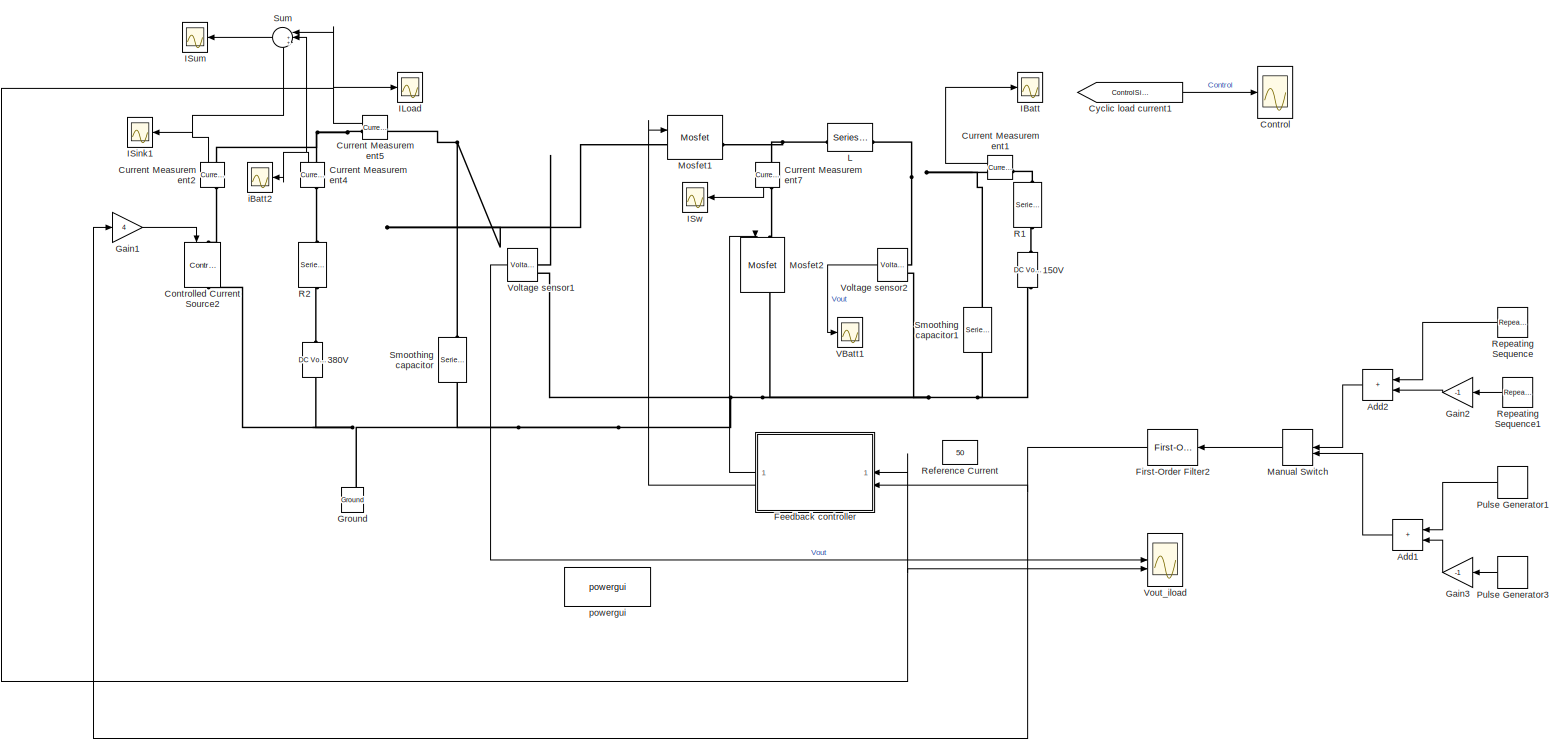
[diagram: root canvas - part 1/2, most of the canvas]
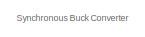
[diagram: root canvas - part 2/2, top right region]
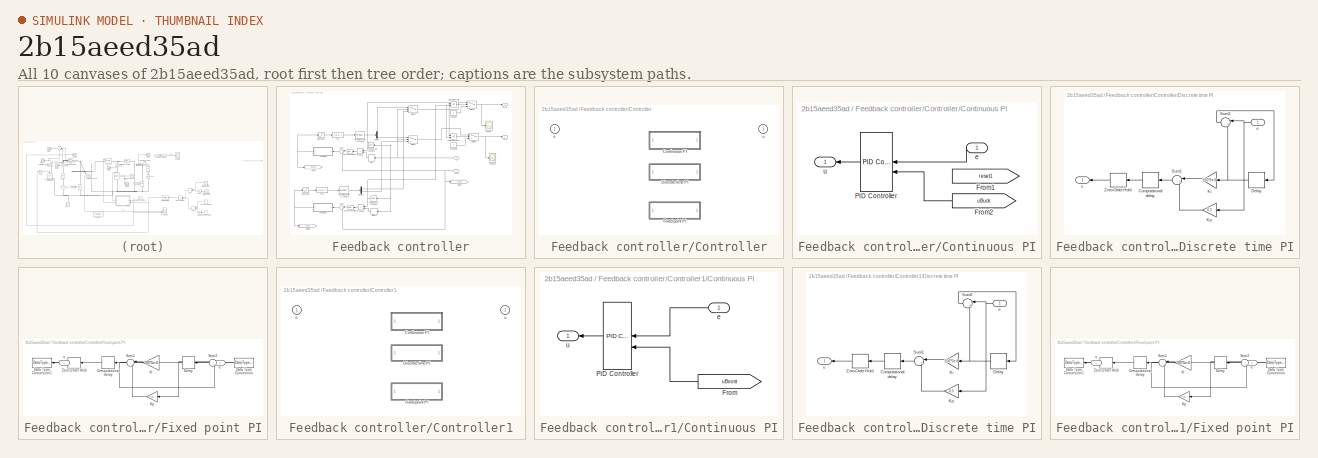
[diagram: thumbnail index - all 10 canvases of the model, root first then tree order]
MODEL slx_2b15aeed35ad
KIND model
CONFIG AbsTol = auto
CONFIG EnableMultiTasking = on
CONFIG FixedStep = auto
CONFIG MaxStep = 1e-4
CONFIG MinStep = auto
CONFIG RelTol = 1e-4
CONFIG SampleTimeConstraint = Unconstrained
CONFIG SolverName = ode15s
CONFIG StartTime = 0.0
CONFIG StopTime = 10
BLOCK [Reference] 150V  REF=spsDCVoltageSourceLib/DC Voltage Source
  NameLocation = right
  SourceBlock = spsDCVoltageSourceLib/DC Voltage Source
  SourceType = DC Voltage Source
BLOCK [Reference] 380V  REF=spsDCVoltageSourceLib/DC Voltage Source
  NameLocation = right
  SourceBlock = spsDCVoltageSourceLib/DC Voltage Source
  SourceType = DC Voltage Source
BLOCK [Sum] Add1
  IconShape = rectangular
BLOCK [Sum] Add2
  IconShape = rectangular
BLOCK [Scope] Control
  ActiveDisplayYMaximum = 0.023182348178801094
  ActiveDisplayYMinimum = -0.0024647053532001208
  DataLoggingDecimateData = on
  DataLoggingDecimation = 1
  DataLoggingSaveFormat = Array
  DataLoggingVariableName = Control
  Floating = off
  GraphicalSettings = {"Style":{"BackgroundColor":[0.12941176470588237,0.12941176470588237,0.12941176470588237],"AxesColor":[0.07058823529411765,0.07058823529411765,0.07058823529411765],"LabelsColor":[0.8509803921568627,0.8509803921568627,0.8509803921568627],"PreserveColors":false,"Visible":[true],"LineStyle":["-"],"LineWidth":[1.5],"BarWidth":[0.9],"LineColor":["auto"],"LineFaceAlpha":[1],"LineEdgeAlpha":[1],"Marker":...<+2013ch>  <repeated x3 — deduplicated; at blocks: Control, Control1>
  MultipleDisplayCache = [{"MaxYLimMag":0.023182348178801094,"MaxYLimReal":0.023182348178801094,"MinYLimMag":0,"MinYLimReal":-0.0024647053532001208,"PlotAsMagnitudePhase":false,"ShowGrid":true,"ShowLegend":false,"Title":"%<SignalLabel>","YLabel":""}]
  NumInputPorts = 1
  ScopeFrameLocation = window
  TimeSpan = 0.01
  WasSavedAsWebScope = on
  WindowPosition = [690.000000,269.000000,489.000000,261.000000,]
BLOCK [Reference] Controlled Current Source2  REF=spsControlledCurrentSourceLib/Controlled Current Source
  LibrarySourceBlock = sps_lib/Sources/Controlled Current Source
  NameLocation = top
  SourceBlock = spsControlledCurrentSourceLib/Controlled Current Source
  SourceType = Controlled Current Source
BLOCK [Reference] Current Measurement1  REF=spsCurrentMeasurementLib/Current Measurement
  SourceBlock = spsCurrentMeasurementLib/Current Measurement
  SourceType = Current Measurement
BLOCK [Reference] Current Measurement2  REF=spsCurrentMeasurementLib/Current Measurement
  NameLocation = left
  SourceBlock = spsCurrentMeasurementLib/Current Measurement
  SourceType = Current Measurement
BLOCK [Reference] Current Measurement4  REF=spsCurrentMeasurementLib/Current Measurement
  NameLocation = left
  SourceBlock = spsCurrentMeasurementLib/Current Measurement
  SourceType = Current Measurement
BLOCK [Reference] Current Measurement5  REF=spsCurrentMeasurementLib/Current Measurement
  SourceBlock = spsCurrentMeasurementLib/Current Measurement
  SourceType = Current Measurement
BLOCK [Reference] Current Measurement7  REF=spsCurrentMeasurementLib/Current Measurement
  NameLocation = right
  SourceBlock = spsCurrentMeasurementLib/Current Measurement
  SourceType = Current Measurement
BLOCK [From] Cyclic load current1
  GotoTag = ControlSignal
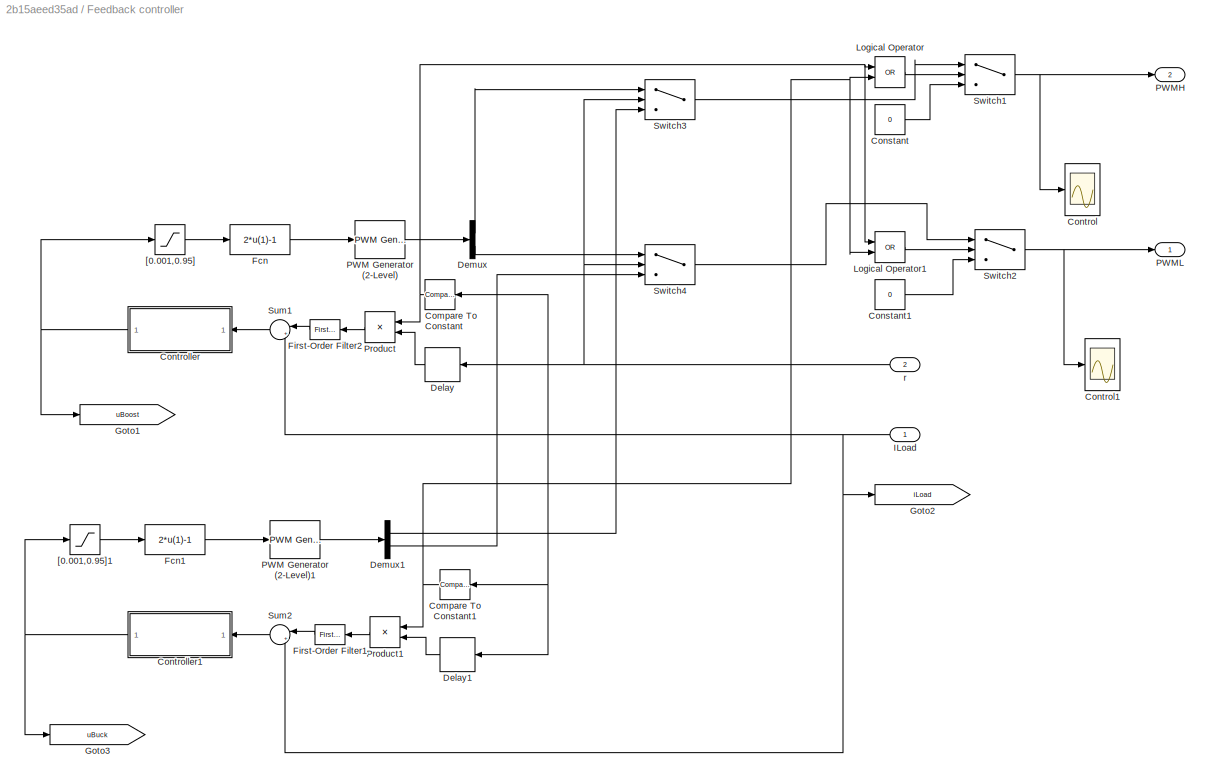
BLOCK [SubSystem] Feedback controller
BLOCK [Reference] Feedback controller/Compare To Constant  REF=simulink/Logic and Bit
Operations/Compare
To Constant
  SourceBlock = simulink/Logic and Bit\nOperations/Compare\nTo Constant
  SourceType = Compare To Constant
BLOCK [Reference] Feedback controller/Compare To Constant1  REF=simulink/Logic and Bit
Operations/Compare
To Constant
  SourceBlock = simulink/Logic and Bit\nOperations/Compare\nTo Constant
  SourceType = Compare To Constant
BLOCK [Constant] Feedback controller/Constant
  Value = 0
BLOCK [Constant] Feedback controller/Constant1
  Value = 0
BLOCK [Scope] Feedback controller/Control
  ActiveDisplayYMaximum = 1.125
  ActiveDisplayYMinimum = -0.12499999999999997
  DataLoggingDecimateData = on
  DataLoggingDecimation = 1
  DataLoggingSaveFormat = Array
  DataLoggingVariableName = Control1
  Floating = off
  MultipleDisplayCache = [{"MaxYLimMag":1.125,"MaxYLimReal":1.125,"MinYLimMag":0,"MinYLimReal":-0.12499999999999997,"PlotAsMagnitudePhase":false,"ShowGrid":true,"ShowLegend":false,"Title":"%<SignalLabel>","YLabel":""}]
  NumInputPorts = 1
  ScopeFrameLocation = window
  TimeSpan = 0.01
  WasSavedAsWebScope = on
  WindowPosition = [690.000000,269.000000,489.000000,261.000000,]
BLOCK [Scope] Feedback controller/Control1
  ActiveDisplayYMaximum = 0.023182348178801094
  ActiveDisplayYMinimum = -0.0024647053532001208
  DataLoggingDecimateData = on
  DataLoggingDecimation = 1
  DataLoggingSaveFormat = Array
  DataLoggingVariableName = Control2
  Floating = off
  MultipleDisplayCache = [{"MaxYLimMag":0.023182348178801094,"MaxYLimReal":0.023182348178801094,"MinYLimMag":0,"MinYLimReal":-0.0024647053532001208,"PlotAsMagnitudePhase":false,"ShowGrid":true,"ShowLegend":false,"Title":"%<SignalLabel>","YLabel":""}]
  NumInputPorts = 1
  ScopeFrameLocation = window
  TimeSpan = 0.01
  WasSavedAsWebScope = on
  WindowPosition = [690.000000,269.000000,489.000000,261.000000,]
BLOCK [SubSystem] Feedback controller/Controller
  AttributesFormatString = %<BlockChoice>
  LabelModeActiveChoice = Variant1
  Variant = on
  VariantControlMode = label
BLOCK [SubSystem] Feedback controller/Controller/Continuous PI
  VariantControl = Variant1
BLOCK [From] Feedback controller/Controller/Continuous PI/From1
  GotoTag = reset1
BLOCK [From] Feedback controller/Controller/Continuous PI/From2
  GotoTag = uBuck
  TagVisibility = global
BLOCK [Reference] Feedback controller/Controller/Continuous PI/PID Controller  REF=slpidlib/PID Controller
  LibrarySourceBlock = simulink/Continuous/PID Controller
  SourceBlock = slpidlib/PID Controller
  SourceType = PID 1dof
BLOCK [Inport] Feedback controller/Controller/Continuous PI/e
BLOCK [Outport] Feedback controller/Controller/Continuous PI/u
  VectorParamsAs1DForOutWhenUnconnected = off
BLOCK [SubSystem] Feedback controller/Controller/Discrete time PI
  VariantControl = Variant2
BLOCK [Delay] Feedback controller/Controller/Discrete time PI/Computational delay
  DelayLength = 1
  InputPortMap = u0
  SampleTime = 5e-6
BLOCK [Delay] Feedback controller/Controller/Discrete time PI/Delay
  DelayLength = 1
  InputPortMap = u0
  SampleTime = 5e-6
BLOCK [Gain] Feedback controller/Controller/Discrete time PI/Ki
  Gain = 200*5e-6
BLOCK [Gain] Feedback controller/Controller/Discrete time PI/Kp
  Gain = 0.5
BLOCK [Sum] Feedback controller/Controller/Discrete time PI/Sum1
  InputSameDT = on
  Inputs = |++
  OutDataTypeStr = Inherit: Same as first input
  SaturateOnIntegerOverflow = on
BLOCK [Sum] Feedback controller/Controller/Discrete time PI/Sum2
  InputSameDT = on
  Inputs = |++
  OutDataTypeStr = Inherit: Same as first input
  SaturateOnIntegerOverflow = on
BLOCK [ZeroOrderHold] Feedback controller/Controller/Discrete time PI/Zero-Order Hold
  SampleTime = 5e-6
BLOCK [Inport] Feedback controller/Controller/Discrete time PI/e
BLOCK [Outport] Feedback controller/Controller/Discrete time PI/u
  VectorParamsAs1DForOutWhenUnconnected = off
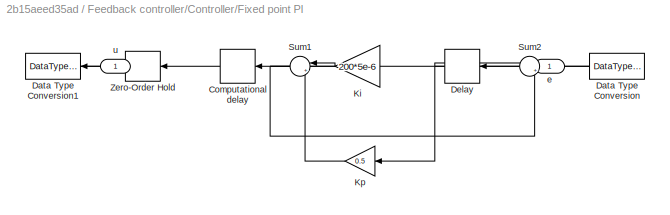
BLOCK [SubSystem] Feedback controller/Controller/Fixed point PI
  MinMaxOverflowLogging = MinMaxAndOverflow
  VariantControl = Variant3
BLOCK [Delay] Feedback controller/Controller/Fixed point PI/Computational delay
  DelayLength = 1
  InputPortMap = u0
  SampleTime = 5e-6
BLOCK [DataTypeConversion] Feedback controller/Controller/Fixed point PI/Data Type Conversion
  OutDataTypeStr = fixdt(1,16,11)
  RndMeth = Nearest
  SaturateOnIntegerOverflow = off
BLOCK [DataTypeConversion] Feedback controller/Controller/Fixed point PI/Data Type Conversion1
  OutDataTypeStr = double
  RndMeth = Nearest
  SaturateOnIntegerOverflow = off
BLOCK [Delay] Feedback controller/Controller/Fixed point PI/Delay
  DelayLength = 1
  InputPortMap = u0
  SampleTime = 5e-6
BLOCK [Gain] Feedback controller/Controller/Fixed point PI/Ki
  Gain = 200*5e-6
  OutDataTypeStr = fixdt(1,16,13)
  RndMeth = Nearest
BLOCK [Gain] Feedback controller/Controller/Fixed point PI/Kp
  Gain = 0.5
  OutDataTypeStr = fixdt(1,16,9)
  RndMeth = Nearest
BLOCK [Sum] Feedback controller/Controller/Fixed point PI/Sum1
  Inputs = |++
  SaturateOnIntegerOverflow = on
BLOCK [Sum] Feedback controller/Controller/Fixed point PI/Sum2
  InputSameDT = on
  Inputs = |++
  OutDataTypeStr = Inherit: Same as first input
  SaturateOnIntegerOverflow = on
BLOCK [ZeroOrderHold] Feedback controller/Controller/Fixed point PI/Zero-Order Hold
  SampleTime = 5e-6
BLOCK [Inport] Feedback controller/Controller/Fixed point PI/e
BLOCK [Outport] Feedback controller/Controller/Fixed point PI/u
  VectorParamsAs1DForOutWhenUnconnected = off
BLOCK [Inport] Feedback controller/Controller/e
BLOCK [Outport] Feedback controller/Controller/u
  VectorParamsAs1DForOutWhenUnconnected = off
BLOCK [SubSystem] Feedback controller/Controller1
  AttributesFormatString = %<BlockChoice>
  LabelModeActiveChoice = Variant1
  Variant = on
  VariantControlMode = label
BLOCK [SubSystem] Feedback controller/Controller1/Continuous PI
  VariantControl = Variant1
BLOCK [From] Feedback controller/Controller1/Continuous PI/From
  GotoTag = uBoost
  TagVisibility = global
BLOCK [Reference] Feedback controller/Controller1/Continuous PI/PID Controller  REF=slpidlib/PID Controller
  LibrarySourceBlock = simulink/Continuous/PID Controller
  SourceBlock = slpidlib/PID Controller
  SourceType = PID 1dof
BLOCK [Inport] Feedback controller/Controller1/Continuous PI/e
BLOCK [Outport] Feedback controller/Controller1/Continuous PI/u
  VectorParamsAs1DForOutWhenUnconnected = off
BLOCK [SubSystem] Feedback controller/Controller1/Discrete time PI
  VariantControl = Variant2
BLOCK [Delay] Feedback controller/Controller1/Discrete time PI/Computational delay
  DelayLength = 1
  InputPortMap = u0
  SampleTime = 5e-6
BLOCK [Delay] Feedback controller/Controller1/Discrete time PI/Delay
  DelayLength = 1
  InputPortMap = u0
  SampleTime = 5e-6
BLOCK [Gain] Feedback controller/Controller1/Discrete time PI/Ki
  Gain = 200*5e-6
BLOCK [Gain] Feedback controller/Controller1/Discrete time PI/Kp
  Gain = 0.5
BLOCK [Sum] Feedback controller/Controller1/Discrete time PI/Sum1
  InputSameDT = on
  Inputs = |++
  OutDataTypeStr = Inherit: Same as first input
  SaturateOnIntegerOverflow = on
BLOCK [Sum] Feedback controller/Controller1/Discrete time PI/Sum2
  InputSameDT = on
  Inputs = |++
  OutDataTypeStr = Inherit: Same as first input
  SaturateOnIntegerOverflow = on
BLOCK [ZeroOrderHold] Feedback controller/Controller1/Discrete time PI/Zero-Order Hold
  SampleTime = 5e-6
BLOCK [Inport] Feedback controller/Controller1/Discrete time PI/e
BLOCK [Outport] Feedback controller/Controller1/Discrete time PI/u
  VectorParamsAs1DForOutWhenUnconnected = off
BLOCK [SubSystem] Feedback controller/Controller1/Fixed point PI
  MinMaxOverflowLogging = MinMaxAndOverflow
  VariantControl = Variant3
BLOCK [Delay] Feedback controller/Controller1/Fixed point PI/Computational delay
  DelayLength = 1
  InputPortMap = u0
  SampleTime = 5e-6
BLOCK [DataTypeConversion] Feedback controller/Controller1/Fixed point PI/Data Type Conversion
  OutDataTypeStr = fixdt(1,16,11)
  RndMeth = Nearest
  SaturateOnIntegerOverflow = off
BLOCK [DataTypeConversion] Feedback controller/Controller1/Fixed point PI/Data Type Conversion1
  OutDataTypeStr = double
  RndMeth = Nearest
  SaturateOnIntegerOverflow = off
BLOCK [Delay] Feedback controller/Controller1/Fixed point PI/Delay
  DelayLength = 1
  InputPortMap = u0
  SampleTime = 5e-6
BLOCK [Gain] Feedback controller/Controller1/Fixed point PI/Ki
  Gain = 200*5e-6
  OutDataTypeStr = fixdt(1,16,13)
  RndMeth = Nearest
BLOCK [Gain] Feedback controller/Controller1/Fixed point PI/Kp
  Gain = 0.5
  OutDataTypeStr = fixdt(1,16,9)
  RndMeth = Nearest
BLOCK [Sum] Feedback controller/Controller1/Fixed point PI/Sum1
  Inputs = |++
  SaturateOnIntegerOverflow = on
BLOCK [Sum] Feedback controller/Controller1/Fixed point PI/Sum2
  InputSameDT = on
  Inputs = |++
  OutDataTypeStr = Inherit: Same as first input
  SaturateOnIntegerOverflow = on
BLOCK [ZeroOrderHold] Feedback controller/Controller1/Fixed point PI/Zero-Order Hold
  SampleTime = 5e-6
BLOCK [Inport] Feedback controller/Controller1/Fixed point PI/e
BLOCK [Outport] Feedback controller/Controller1/Fixed point PI/u
  VectorParamsAs1DForOutWhenUnconnected = off
BLOCK [Inport] Feedback controller/Controller1/e
BLOCK [Outport] Feedback controller/Controller1/u
  VectorParamsAs1DForOutWhenUnconnected = off
BLOCK [Delay] Feedback controller/Delay
  DelayLength = 1
  InitialCondition = 0
  InputPortMap = u0
BLOCK [Delay] Feedback controller/Delay1
  DelayLength = 1
  InitialCondition = 0
  InputPortMap = u0
BLOCK [Demux] Feedback controller/Demux
  Outputs = 2
BLOCK [Demux] Feedback controller/Demux1
  Outputs = 2
BLOCK [Fcn] Feedback controller/Fcn
  Expr = 2*u(1)-1
BLOCK [Fcn] Feedback controller/Fcn1
  Expr = 2*u(1)-1
BLOCK [Reference] Feedback controller/First-Order Filter1  REF=spsFirstOrderFilterLib/First-Order
Filter
  LibrarySourceBlock = sps_lib/Control/Filters/First-Order\nFilter
  SourceBlock = spsFirstOrderFilterLib/First-Order\nFilter
  SourceType = First-Order Filter
BLOCK [Reference] Feedback controller/First-Order Filter2  REF=spsFirstOrderFilterLib/First-Order
Filter
  LibrarySourceBlock = sps_lib/Control/Filters/First-Order\nFilter
  SourceBlock = spsFirstOrderFilterLib/First-Order\nFilter
  SourceType = First-Order Filter
BLOCK [Goto] Feedback controller/Goto1
  GotoTag = uBoost
  TagVisibility = global
BLOCK [Goto] Feedback controller/Goto2
  GotoTag = iLoad
  TagVisibility = global
BLOCK [Goto] Feedback controller/Goto3
  GotoTag = uBuck
  TagVisibility = global
BLOCK [Inport] Feedback controller/ILoad
BLOCK [Logic] Feedback controller/Logical Operator
  AllPortsSameDT = off
  Operator = OR
  OutDataTypeStr = boolean
BLOCK [Logic] Feedback controller/Logical Operator1
  AllPortsSameDT = off
  Operator = OR
  OutDataTypeStr = boolean
BLOCK [Reference] Feedback controller/PWM Generator (2-Level)  REF=spsPWMGenerator2LevelLib/PWM Generator
(2-Level)
  SourceBlock = spsPWMGenerator2LevelLib/PWM Generator\n(2-Level)
  SourceType = PWM Generator (2-Level)
BLOCK [Reference] Feedback controller/PWM Generator (2-Level)1  REF=spsPWMGenerator2LevelLib/PWM Generator
(2-Level)
  SourceBlock = spsPWMGenerator2LevelLib/PWM Generator\n(2-Level)
  SourceType = PWM Generator (2-Level)
BLOCK [Outport] Feedback controller/PWMH
  Port = 2
  VectorParamsAs1DForOutWhenUnconnected = off
BLOCK [Outport] Feedback controller/PWML
  VectorParamsAs1DForOutWhenUnconnected = off
BLOCK [Product] Feedback controller/Product
BLOCK [Product] Feedback controller/Product1
BLOCK [Sum] Feedback controller/Sum1
  InputSameDT = on
  Inputs = |+-
  OutDataTypeStr = Inherit: Same as first input
  SaturateOnIntegerOverflow = on
BLOCK [Sum] Feedback controller/Sum2
  InputSameDT = on
  Inputs = |+-
  OutDataTypeStr = Inherit: Same as first input
  SaturateOnIntegerOverflow = on
BLOCK [Switch] Feedback controller/Switch1
  Criteria = u2 > Threshold
  InputSameDT = off
  SaturateOnIntegerOverflow = off
BLOCK [Switch] Feedback controller/Switch2
  Criteria = u2 > Threshold
  InputSameDT = off
  SaturateOnIntegerOverflow = off
BLOCK [Switch] Feedback controller/Switch3
  Criteria = u2 > Threshold
  InputSameDT = off
  SaturateOnIntegerOverflow = off
BLOCK [Switch] Feedback controller/Switch4
  Criteria = u2 > Threshold
  InputSameDT = off
  SaturateOnIntegerOverflow = off
BLOCK [Saturate] Feedback controller/[0.001,0.95]
  LowerLimit = 0.0001
  UpperLimit = 0.95
BLOCK [Saturate] Feedback controller/[0.001,0.95]1
  LowerLimit = 0.0001
  UpperLimit = 0.95
BLOCK [Inport] Feedback controller/r
  Port = 2
BLOCK [Reference] First-Order Filter2  REF=spsFirstOrderFilterLib/First-Order
Filter
  LibrarySourceBlock = sps_lib/Control/Filters/First-Order\nFilter
  SourceBlock = spsFirstOrderFilterLib/First-Order\nFilter
  SourceType = First-Order Filter
BLOCK [Gain] Gain1
  Gain = 4
BLOCK [Gain] Gain2
  Gain = -1
BLOCK [Gain] Gain3
  Gain = -1
BLOCK [Reference] Ground  REF=spsGroundLib/Ground
  NameLocation = left
  SourceBlock = spsGroundLib/Ground
  SourceType = Ground
BLOCK [Scope] IBatt
  ActiveDisplayYMaximum = 16926.559366246598
  ActiveDisplayYMinimum = -4410.7984256590225
  DataLogging = on
  DataLoggingDecimateData = on
  DataLoggingDecimation = 1
  DataLoggingSaveFormat = Array
  DataLoggingVariableName = Isrc_sps1
  Floating = off
  GraphicalSettings = {"Style":{"BackgroundColor":[0.12941176470588237,0.12941176470588237,0.12941176470588237],"AxesColor":[0.07058823529411765,0.07058823529411765,0.07058823529411765],"LabelsColor":[0.8509803921568627,0.8509803921568627,0.8509803921568627],"PreserveColors":false,"Visible":[true],"LineStyle":["-"],"LineWidth":[1.5],"BarWidth":[0.9],"LineColor":["auto"],"LineFaceAlpha":[1],"LineEdgeAlpha":[1],"Marker":...<+2027ch>  <repeated x4 — deduplicated; at blocks: IBatt, ILoad, ISw, VBatt1>
  MultipleDisplayCache = [{"MaxYLimMag":16926.559366246598,"MaxYLimReal":16926.559366246598,"MinYLimMag":0,"MinYLimReal":-4410.7984256590225,"PlotAsMagnitudePhase":false,"ShowGrid":true,"ShowLegend":false,"Title":"%<SignalLabel>","YLabel":""}]  <repeated x3 — deduplicated; at blocks: IBatt, ISw, VBatt1>
  NumInputPorts = 1
  ScopeFrameLocation = window
  TimeSpan = 0.01
  WasSavedAsWebScope = on
  WindowPosition = [960.000000,36.000000,1920.000000,1009.000000,]
BLOCK [Scope] ILoad
  ActiveDisplayYMaximum = 1093.0850139818504
  ActiveDisplayYMinimum = -119.68929460234355
  DataLogging = on
  DataLoggingDecimateData = on
  DataLoggingDecimation = 1
  DataLoggingSaveFormat = Array
  DataLoggingVariableName = Isrc_sps
  Floating = off
  MultipleDisplayCache = [{"MaxYLimMag":1093.0850139818504,"MaxYLimReal":1093.0850139818504,"MinYLimMag":0,"MinYLimReal":-119.68929460234355,"PlotAsMagnitudePhase":false,"ShowGrid":true,"ShowLegend":false,"Title":"%<SignalLabel>","YLabel":""}]
  NumInputPorts = 1
  ScopeFrameLocation = window
  TimeSpan = 0.01
  WasSavedAsWebScope = on
  WindowPosition = [712.000000,515.000000,488.000000,351.000000,]
BLOCK [Scope] ISink1
  ActiveDisplayYMaximum = 112.5
  ActiveDisplayYMinimum = -12.499999999999996
  DataLogging = on
  DataLoggingDecimateData = on
  DataLoggingDecimation = 1
  DataLoggingSaveFormat = Array
  DataLoggingVariableName = Isrc_sps3
  Floating = off
  GraphicalSettings = {"Style":{"BackgroundColor":[0.12941176470588237,0.12941176470588237,0.12941176470588237],"AxesColor":[0.07058823529411765,0.07058823529411765,0.07058823529411765],"LabelsColor":[0.8509803921568627,0.8509803921568627,0.8509803921568627],"PreserveColors":false,"Visible":[true],"LineStyle":["-"],"LineWidth":[1.5],"BarWidth":[0.9],"LineColor":["auto"],"LineFaceAlpha":[1],"LineEdgeAlpha":[1],"Marker":...<+1973ch>
  MultipleDisplayCache = [{"MaxYLimMag":112.5,"MaxYLimReal":112.5,"MinYLimMag":0,"MinYLimReal":-12.499999999999996,"PlotAsMagnitudePhase":false,"ShowGrid":true,"ShowLegend":false,"Title":"%<SignalLabel>","YLabel":""}]
  NumInputPorts = 1
  ScopeFrameLocation = window
  TimeSpan = 0.01
  WasSavedAsWebScope = on
  WindowPosition = [712.000000,515.000000,488.000000,351.000000,]
BLOCK [Scope] ISum
  ActiveDisplayYMaximum = 1.7763568394002505E-14
  ActiveDisplayYMinimum = -1.7763568394002505E-14
  DataLogging = on
  DataLoggingDecimateData = on
  DataLoggingDecimation = 1
  DataLoggingSaveFormat = Array
  DataLoggingVariableName = Isrc_sps4
  Floating = off
  GraphicalSettings = {"Style":{"BackgroundColor":[0.12941176470588237,0.12941176470588237,0.12941176470588237],"AxesColor":[0.07058823529411765,0.07058823529411765,0.07058823529411765],"LabelsColor":[0.8509803921568627,0.8509803921568627,0.8509803921568627],"PreserveColors":false,"Visible":[true],"LineStyle":["-"],"LineWidth":[1.5],"BarWidth":[0.9],"LineColor":["auto"],"LineFaceAlpha":[1],"LineEdgeAlpha":[1],"Marker":...<+1891ch>
  MultipleDisplayCache = [{"MaxYLimMag":1.7763568394002505E-14,"MaxYLimReal":1.7763568394002505E-14,"MinYLimMag":0,"MinYLimReal":-1.7763568394002505E-14,"PlotAsMagnitudePhase":false,"ShowGrid":true,"ShowLegend":false,"Title":"%<SignalLabel>","YLabel":""}]
  NumInputPorts = 1
  ScopeFrameLocation = window
  TimeSpan = 0.01
  WasSavedAsWebScope = on
  WindowPosition = [712.000000,515.000000,488.000000,351.000000,]
BLOCK [Scope] ISw
  ActiveDisplayYMaximum = 16926.559366246598
  ActiveDisplayYMinimum = -4410.7984256590225
  DataLogging = on
  DataLoggingDecimateData = on
  DataLoggingDecimation = 1
  DataLoggingSaveFormat = Array
  DataLoggingVariableName = Isrc_sps6
  Floating = off
  NumInputPorts = 1
  ScopeFrameLocation = window
  TimeSpan = 0.01
  WasSavedAsWebScope = on
  WindowPosition = [712.000000,515.000000,488.000000,351.000000,]
BLOCK [Reference] L  REF=spsSeriesRLCBranchLib/Series RLC Branch
  NameLocation = top
  SourceBlock = spsSeriesRLCBranchLib/Series RLC Branch
  SourceType = Series RLC Branch
BLOCK [ManualSwitch] Manual Switch
BLOCK [Reference] Mosfet1  REF=spsMosfetLib/Mosfet
  SourceBlock = spsMosfetLib/Mosfet
  SourceType = Mosfet
BLOCK [Reference] Mosfet2  REF=spsMosfetLib/Mosfet
  NameLocation = left
  SourceBlock = spsMosfetLib/Mosfet
  SourceType = Mosfet
BLOCK [DiscretePulseGenerator] Pulse Generator1
  Amplitude = 50
  Period = 0.5
  PulseType = Time based
  PulseWidth = 50
BLOCK [DiscretePulseGenerator] Pulse Generator3
  Amplitude = 50
  Period = 0.5
  PhaseDelay = 0.25
  PulseType = Time based
  PulseWidth = 50
BLOCK [Reference] R1  REF=spsSeriesRLCBranchLib/Series RLC Branch
  NameLocation = left
  SourceBlock = spsSeriesRLCBranchLib/Series RLC Branch
  SourceType = Series RLC Branch
BLOCK [Reference] R2  REF=spsSeriesRLCBranchLib/Series RLC Branch
  NameLocation = left
  SourceBlock = spsSeriesRLCBranchLib/Series RLC Branch
  SourceType = Series RLC Branch
BLOCK [Constant] Reference Current
  Value = 50
BLOCK [Reference] Repeating Sequence  REF=simulink/Sources/Repeating
Sequence
  SourceBlock = simulink/Sources/Repeating\nSequence
  SourceType = Repeating table
BLOCK [Reference] Repeating Sequence1  REF=simulink/Sources/Repeating
Sequence
  SourceBlock = simulink/Sources/Repeating\nSequence
  SourceType = Repeating table
BLOCK [Reference] Smoothing capacitor  REF=spsSeriesRLCBranchLib/Series RLC Branch
  NameLocation = left
  SourceBlock = spsSeriesRLCBranchLib/Series RLC Branch
  SourceType = Series RLC Branch
BLOCK [Reference] Smoothing capacitor1  REF=spsSeriesRLCBranchLib/Series RLC Branch
  NameLocation = left
  SourceBlock = spsSeriesRLCBranchLib/Series RLC Branch
  SourceType = Series RLC Branch
BLOCK [Sum] Sum
  Inputs = |+++
BLOCK [Scope] VBatt1
  ActiveDisplayYMaximum = 16926.559366246598
  ActiveDisplayYMinimum = -4410.7984256590225
  DataLogging = on
  DataLoggingDecimateData = on
  DataLoggingDecimation = 1
  DataLoggingSaveFormat = Array
  DataLoggingVariableName = Isrc_sps5
  Floating = off
  NumInputPorts = 1
  ScopeFrameLocation = window
  TimeSpan = 0.01
  WasSavedAsWebScope = on
  WindowPosition = [712.000000,515.000000,488.000000,351.000000,]
BLOCK [Reference] Voltage sensor1  REF=spsVoltageMeasurementLib/Voltage Measurement
  SourceBlock = spsVoltageMeasurementLib/Voltage Measurement
  SourceType = Voltage Measurement
BLOCK [Reference] Voltage sensor2  REF=spsVoltageMeasurementLib/Voltage Measurement
  SourceBlock = spsVoltageMeasurementLib/Voltage Measurement
  SourceType = Voltage Measurement
BLOCK [Scope] Vout_iload
  ActiveDisplayYMaximum = 382.41144423013787
  ActiveDisplayYMinimum = 378.03414422810704
  DataLoggingDecimateData = on
  DataLoggingDecimation = 1
  DataLoggingSaveFormat = Array
  DataLoggingVariableName = Vout_sps
  Floating = off
  GraphicalSettings = {"Style":{"BackgroundColor":[0.12941176470588237,0.12941176470588237,0.12941176470588237],"AxesColor":[0.07058823529411765,0.07058823529411765,0.07058823529411765],"LabelsColor":[0.8509803921568627,0.8509803921568627,0.8509803921568627],"PreserveColors":false,"Visible":[true,true],"LineStyle":["-","-"],"LineWidth":[1.5,1.5],"BarWidth":[0.9,0.9],"LineColor":["auto","auto"],"LineFaceAlpha":[1,1],"Li...<+2463ch>
  LayoutDimensionsString = [2 1]
  MultipleDisplayCache = [{"MaxYLimMag":382.41144423013787,"MaxYLimReal":382.41144423013787,"MinYLimMag":378.03414422810704,"MinYLimReal":378.03414422810704,"PlotAsMagnitudePhase":false,"ShowGrid":true,"ShowLegend":false,"Title":"%<SignalLabel>","YLabel":""},{"MaxYLimMag":61.333506736411749,"MaxYLimReal":61.333506736411749,"MinYLimMag":0,"MinYLimReal":-6.9063956014859427,"PlotAsMagnitudePhase":false,"ShowGrid":true,"ShowL...<+51ch>
  NumInputPorts = 2
  ScopeFrameLocation = window
  TimeSpan = 0.01
  Visible = on
  WasSavedAsWebScope = on
  WindowPosition = [1537.000000,49.000000,1536.000000,793.000000,]
BLOCK [Scope] iBatt2
  ActiveDisplayYMaximum = 295.23155792169746
  ActiveDisplayYMinimum = -212.44166562760256
  DataLogging = on
  DataLoggingDecimateData = on
  DataLoggingDecimation = 1
  DataLoggingSaveFormat = Array
  DataLoggingVariableName = Isrc_sps2
  Floating = off
  GraphicalSettings = {"Style":{"BackgroundColor":[0.12941176470588237,0.12941176470588237,0.12941176470588237],"AxesColor":[0.07058823529411765,0.07058823529411765,0.07058823529411765],"LabelsColor":[0.8509803921568627,0.8509803921568627,0.8509803921568627],"PreserveColors":false,"Visible":[true],"LineStyle":["-"],"LineWidth":[1.5],"BarWidth":[0.9],"LineColor":["auto"],"LineFaceAlpha":[1],"LineEdgeAlpha":[1],"Marker":...<+1975ch>
  MultipleDisplayCache = [{"MaxYLimMag":295.23155792169746,"MaxYLimReal":295.23155792169746,"MinYLimMag":0,"MinYLimReal":-212.44166562760256,"PlotAsMagnitudePhase":false,"ShowGrid":true,"ShowLegend":false,"Title":"%<SignalLabel>","YLabel":""}]
  NumInputPorts = 1
  ScopeFrameLocation = window
  TimeSpan = 0.01
  WasSavedAsWebScope = on
  WindowPosition = [1.000000,49.000000,1920.000000,1009.000000,]
BLOCK [Reference] powergui  REF=spspowerguiLib/powergui
  Priority = 1
  SourceBlock = spspowerguiLib/powergui
  SourceType = PSB option menu block
ANNOTATION (root): Synchronous Buck Converter
LINE Add1:1 -> Manual Switch:2
LINE Add2:1 -> Manual Switch:1
LINE Current Measurement1:1 -> IBatt:1
NET Current Measurement2:1 -> ISink1:1, Sum:3
NET Current Measurement4:1 -> Sum:2, iBatt2:1
NET Current Measurement5:1 -> Feedback controller:1, ILoad:1, Sum:1, Vout_iload:2
LINE Current Measurement7:1 -> ISw:1
LINE Cyclic load current1:1 -> Control:1
NET Feedback controller/Compare To Constant1:1 -> Feedback controller/Logical Operator1:2, Feedback controller/Logical Operator:2, Feedback controller/Product1:1
NET Feedback controller/Compare To Constant:1 -> Feedback controller/Logical Operator1:1, Feedback controller/Logical Operator:1, Feedback controller/Product:1
LINE Feedback controller/Constant1:1 -> Feedback controller/Switch2:3
LINE Feedback controller/Constant:1 -> Feedback controller/Switch1:3
LINE Feedback controller/Controller/Continuous PI/From2:1 -> Feedback controller/Controller/Continuous PI/PID Controller:2
LINE Feedback controller/Controller/Continuous PI/PID Controller:1 -> Feedback controller/Controller/Continuous PI/u:1
LINE Feedback controller/Controller/Continuous PI/e:1 -> Feedback controller/Controller/Continuous PI/PID Controller:1
LINE Feedback controller/Controller/Discrete time PI/Computational delay:1 -> Feedback controller/Controller/Discrete time PI/Zero-Order Hold:1
NET Feedback controller/Controller/Discrete time PI/Delay:1 -> Feedback controller/Controller/Discrete time PI/Ki:1, Feedback controller/Controller/Discrete time PI/Sum2:2
LINE Feedback controller/Controller/Discrete time PI/Ki:1 -> Feedback controller/Controller/Discrete time PI/Sum1:1
LINE Feedback controller/Controller/Discrete time PI/Kp:1 -> Feedback controller/Controller/Discrete time PI/Sum1:2
LINE Feedback controller/Controller/Discrete time PI/Sum1:1 -> Feedback controller/Controller/Discrete time PI/Computational delay:1
LINE Feedback controller/Controller/Discrete time PI/Sum2:1 -> Feedback controller/Controller/Discrete time PI/Delay:1
LINE Feedback controller/Controller/Discrete time PI/Zero-Order Hold:1 -> Feedback controller/Controller/Discrete time PI/u:1
NET Feedback controller/Controller/Discrete time PI/e:1 -> Feedback controller/Controller/Discrete time PI/Kp:1, Feedback controller/Controller/Discrete time PI/Sum2:1
LINE Feedback controller/Controller/Fixed point PI/Computational delay:1 -> Feedback controller/Controller/Fixed point PI/Zero-Order Hold:1
LINE Feedback controller/Controller/Fixed point PI/Data Type Conversion1:1 -> Feedback controller/Controller/Fixed point PI/u:1
NET Feedback controller/Controller/Fixed point PI/Data Type Conversion:1 -> Feedback controller/Controller/Fixed point PI/Kp:1, Feedback controller/Controller/Fixed point PI/Sum2:1
NET Feedback controller/Controller/Fixed point PI/Delay:1 -> Feedback controller/Controller/Fixed point PI/Ki:1, Feedback controller/Controller/Fixed point PI/Sum2:2
LINE Feedback controller/Controller/Fixed point PI/Ki:1 -> Feedback controller/Controller/Fixed point PI/Sum1:1
LINE Feedback controller/Controller/Fixed point PI/Kp:1 -> Feedback controller/Controller/Fixed point PI/Sum1:2
LINE Feedback controller/Controller/Fixed point PI/Sum1:1 -> Feedback controller/Controller/Fixed point PI/Computational delay:1
LINE Feedback controller/Controller/Fixed point PI/Sum2:1 -> Feedback controller/Controller/Fixed point PI/Delay:1
LINE Feedback controller/Controller/Fixed point PI/Zero-Order Hold:1 -> Feedback controller/Controller/Fixed point PI/Data Type Conversion1:1
LINE Feedback controller/Controller/Fixed point PI/e:1 -> Feedback controller/Controller/Fixed point PI/Data Type Conversion:1
LINE Feedback controller/Controller1/Continuous PI/From:1 -> Feedback controller/Controller1/Continuous PI/PID Controller:2
LINE Feedback controller/Controller1/Continuous PI/PID Controller:1 -> Feedback controller/Controller1/Continuous PI/u:1
LINE Feedback controller/Controller1/Continuous PI/e:1 -> Feedback controller/Controller1/Continuous PI/PID Controller:1
LINE Feedback controller/Controller1/Discrete time PI/Computational delay:1 -> Feedback controller/Controller1/Discrete time PI/Zero-Order Hold:1
NET Feedback controller/Controller1/Discrete time PI/Delay:1 -> Feedback controller/Controller1/Discrete time PI/Ki:1, Feedback controller/Controller1/Discrete time PI/Sum2:2
LINE Feedback controller/Controller1/Discrete time PI/Ki:1 -> Feedback controller/Controller1/Discrete time PI/Sum1:1
LINE Feedback controller/Controller1/Discrete time PI/Kp:1 -> Feedback controller/Controller1/Discrete time PI/Sum1:2
LINE Feedback controller/Controller1/Discrete time PI/Sum1:1 -> Feedback controller/Controller1/Discrete time PI/Computational delay:1
LINE Feedback controller/Controller1/Discrete time PI/Sum2:1 -> Feedback controller/Controller1/Discrete time PI/Delay:1
LINE Feedback controller/Controller1/Discrete time PI/Zero-Order Hold:1 -> Feedback controller/Controller1/Discrete time PI/u:1
NET Feedback controller/Controller1/Discrete time PI/e:1 -> Feedback controller/Controller1/Discrete time PI/Kp:1, Feedback controller/Controller1/Discrete time PI/Sum2:1
LINE Feedback controller/Controller1/Fixed point PI/Computational delay:1 -> Feedback controller/Controller1/Fixed point PI/Zero-Order Hold:1
LINE Feedback controller/Controller1/Fixed point PI/Data Type Conversion1:1 -> Feedback controller/Controller1/Fixed point PI/u:1
NET Feedback controller/Controller1/Fixed point PI/Data Type Conversion:1 -> Feedback controller/Controller1/Fixed point PI/Kp:1, Feedback controller/Controller1/Fixed point PI/Sum2:1
NET Feedback controller/Controller1/Fixed point PI/Delay:1 -> Feedback controller/Controller1/Fixed point PI/Ki:1, Feedback controller/Controller1/Fixed point PI/Sum2:2
LINE Feedback controller/Controller1/Fixed point PI/Ki:1 -> Feedback controller/Controller1/Fixed point PI/Sum1:1
LINE Feedback controller/Controller1/Fixed point PI/Kp:1 -> Feedback controller/Controller1/Fixed point PI/Sum1:2
LINE Feedback controller/Controller1/Fixed point PI/Sum1:1 -> Feedback controller/Controller1/Fixed point PI/Computational delay:1
LINE Feedback controller/Controller1/Fixed point PI/Sum2:1 -> Feedback controller/Controller1/Fixed point PI/Delay:1
LINE Feedback controller/Controller1/Fixed point PI/Zero-Order Hold:1 -> Feedback controller/Controller1/Fixed point PI/Data Type Conversion1:1
LINE Feedback controller/Controller1/Fixed point PI/e:1 -> Feedback controller/Controller1/Fixed point PI/Data Type Conversion:1
NET Feedback controller/Controller1:1 -> Feedback controller/Goto3:1, Feedback controller/[0.001,0.95]1:1
NET Feedback controller/Controller:1 -> Feedback controller/Goto1:1, Feedback controller/[0.001,0.95]:1
LINE Feedback controller/Delay1:1 -> Feedback controller/Product1:2
LINE Feedback controller/Delay:1 -> Feedback controller/Product:2
LINE Feedback controller/Demux1:1 -> Feedback controller/Switch3:3
LINE Feedback controller/Demux1:2 -> Feedback controller/Switch4:3
LINE Feedback controller/Demux:1 -> Feedback controller/Switch3:1
LINE Feedback controller/Demux:2 -> Feedback controller/Switch4:1
LINE Feedback controller/Fcn1:1 -> Feedback controller/PWM Generator (2-Level)1:1
LINE Feedback controller/Fcn:1 -> Feedback controller/PWM Generator (2-Level):1
LINE Feedback controller/First-Order Filter1:1 -> Feedback controller/Sum2:1
LINE Feedback controller/First-Order Filter2:1 -> Feedback controller/Sum1:1
NET Feedback controller/ILoad:1 -> Feedback controller/Goto2:1, Feedback controller/Sum1:2, Feedback controller/Sum2:2
LINE Feedback controller/Logical Operator1:1 -> Feedback controller/Switch2:2
LINE Feedback controller/Logical Operator:1 -> Feedback controller/Switch1:2
LINE Feedback controller/PWM Generator (2-Level)1:1 -> Feedback controller/Demux1:1
LINE Feedback controller/PWM Generator (2-Level):1 -> Feedback controller/Demux:1
LINE Feedback controller/Product1:1 -> Feedback controller/First-Order Filter1:1
LINE Feedback controller/Product:1 -> Feedback controller/First-Order Filter2:1
LINE Feedback controller/Sum1:1 -> Feedback controller/Controller:1
LINE Feedback controller/Sum2:1 -> Feedback controller/Controller1:1
NET Feedback controller/Switch1:1 -> Feedback controller/Control:1, Feedback controller/PWMH:1
NET Feedback controller/Switch2:1 -> Feedback controller/Control1:1, Feedback controller/PWML:1
LINE Feedback controller/Switch3:1 -> Feedback controller/Switch1:1
LINE Feedback controller/Switch4:1 -> Feedback controller/Switch2:1
LINE Feedback controller/[0.001,0.95]1:1 -> Feedback controller/Fcn1:1
LINE Feedback controller/[0.001,0.95]:1 -> Feedback controller/Fcn:1
NET Feedback controller/r:1 -> Feedback controller/Compare To Constant1:1, Feedback controller/Compare To Constant:1, Feedback controller/Delay1:1, Feedback controller/Delay:1, Feedback controller/Switch3:2, Feedback controller/Switch4:2
LINE Feedback controller:1 -> Mosfet2:1
LINE Feedback controller:2 -> Mosfet1:1
NET First-Order Filter2:1 -> Feedback controller:2, Gain1:1
LINE Gain1:1 -> Controlled Current Source2:1
LINE Gain2:1 -> Add2:2
LINE Gain3:1 -> Add1:2
LINE Manual Switch:1 -> First-Order Filter2:1
LINE Pulse Generator1:1 -> Add1:1
LINE Pulse Generator3:1 -> Gain3:1
LINE Repeating Sequence1:1 -> Gain2:1
LINE Repeating Sequence:1 -> Add2:1
LINE Sum:1 -> ISum:1
LINE Voltage sensor1:1 -> Vout_iload:1
LINE Voltage sensor2:1 -> VBatt1:1
PNET net1: 150V:LConn1 -- 380V:LConn1 -- Controlled Current Source2:RConn1 -- Ground:LConn1 -- Mosfet2:RConn1 -- Smoothing capacitor1:RConn1 -- Smoothing capacitor:RConn1 -- Voltage sensor1:LConn2 -- Voltage sensor2:LConn2
PLINE 150V:RConn1 -- R1:RConn1
PLINE 380V:RConn1 -- R2:RConn1
PLINE Controlled Current Source2:LConn1 -- Current Measurement2:LConn1
PLINE Current Measurement1:LConn1 -- R1:LConn1
PNET net2: Current Measurement1:RConn1 -- L:RConn1 -- Smoothing capacitor1:LConn1 -- Voltage sensor2:LConn1
PNET net3: Current Measurement2:RConn1 -- Current Measurement4:RConn1 -- Current Measurement5:RConn1
PLINE Current Measurement4:LConn1 -- R2:LConn1
PNET net4: Current Measurement5:LConn1 -- Mosfet1:LConn1 -- Smoothing capacitor:LConn1 -- Voltage sensor1:LConn1
PNET net5: Current Measurement7:LConn1 -- L:LConn1 -- Mosfet1:RConn1
PLINE Current Measurement7:RConn1 -- Mosfet2:LConn1
note: NET lines group one-source signal fan-out (src -> all destinations, sorted); 1:1 wires keep LINE; PNET lines group multi-terminal physical nets as a canonical sorted terminal list (undirected conserving connections); 2-terminal nets keep the pairwise PLINE form
